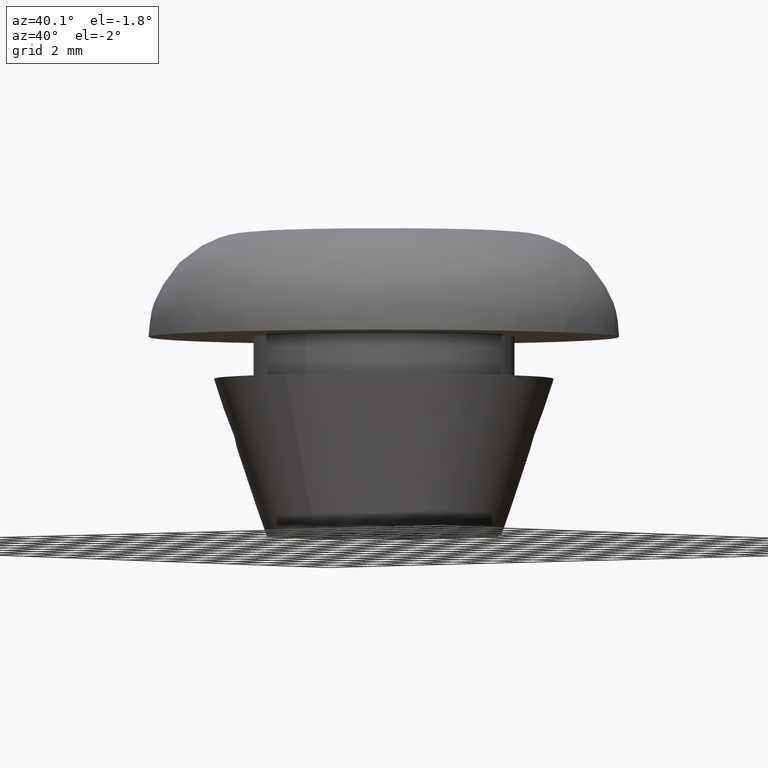
[diagram: clean part render]
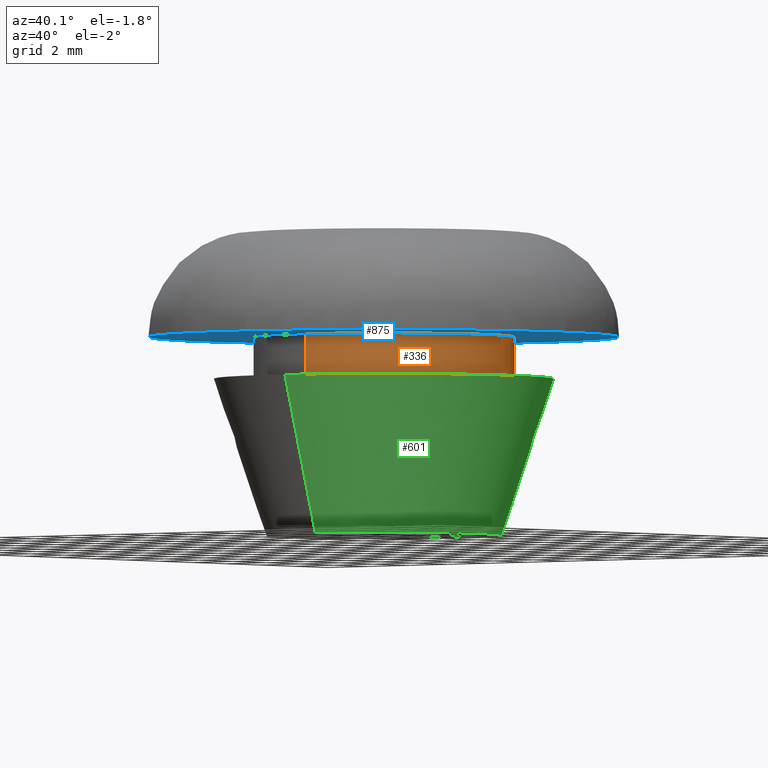
[diagram: same view with three faces highlighted in distinct colors, each labeled with its STEP entity id]
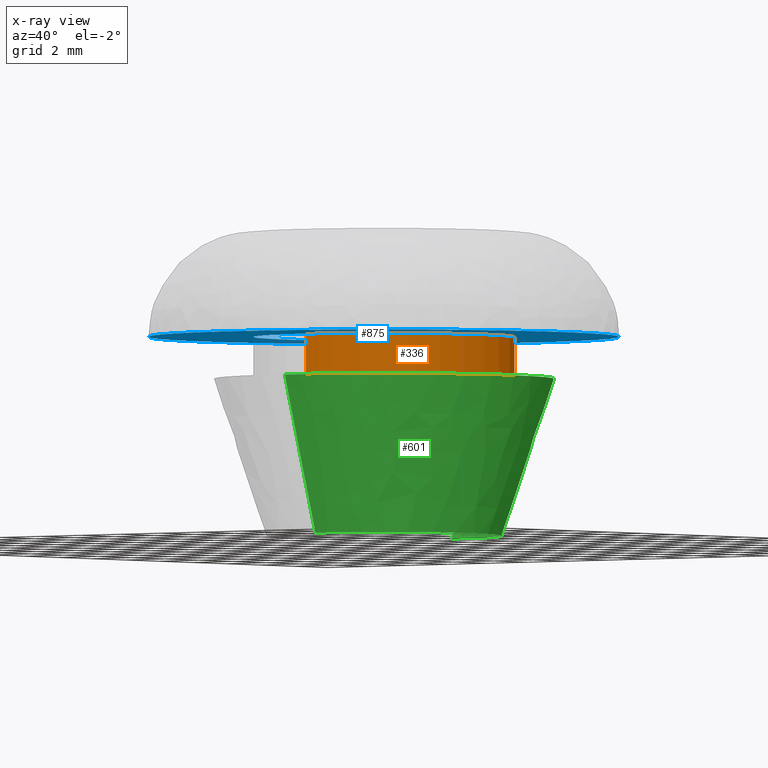
[diagram: x-ray of the same camera — body ghosted, the three highlighted faces saturated]
A machine part, auxiliary view with three faces highlighted in distinct colors.
The next image is the same camera in x-ray (body ghosted, the three faces saturated) — at least one of them is partly hidden behind the body in this view.
Their STEP definitions:

[orange] entity #336 — the highlighted face is a freeform B-spline surface patch.
#234=CARTESIAN_POINT('',(-0.590171173283792,4.965047631818332,7.640000000000002));
#235=CARTESIAN_POINT('',(-0.448073643189888,4.981938077243028,7.640000000000002));
#236=CARTESIAN_POINT('',(-0.305242697674285,4.990673992109334,7.640000000000001));
#237=CARTESIAN_POINT('',(4.685431294435048,5.295916689783620,7.640000000000001));
#238=CARTESIAN_POINT('',(4.990673992109334,0.305242697674285,7.640000000000001));
#239=CARTESIAN_POINT('',(5.295916689783620,-4.685431294435048,7.640000000000001));
#240=CARTESIAN_POINT('',(0.305242697674285,-4.990673992109334,7.640000000000001));
#241=CARTESIAN_POINT('',(-0.590171173283792,4.965047631818332,5.959000000000001));
#242=CARTESIAN_POINT('',(-0.448073643189888,4.981938077243028,5.959000000000000));
#243=CARTESIAN_POINT('',(-0.305242697674285,4.990673992109334,5.958999999999999));
#244=CARTESIAN_POINT('',(4.685431294435048,5.295916689783620,5.958999999999999));
#245=CARTESIAN_POINT('',(4.990673992109334,0.305242697674285,5.958999999999999));
#246=CARTESIAN_POINT('',(5.295916689783620,-4.685431294435048,5.958999999999999));
#247=CARTESIAN_POINT('',(0.305242697674285,-4.990673992109334,5.958999999999999));
#255=(BOUNDED_SURFACE()B_SPLINE_SURFACE(2,1,((#234,#241),(#235,#242),(#236,#243),(#237,#244),(#238,#245),(#239,#246),(#240,#247)),.UNSPECIFIED.,.F.,.F.,.U.)B_SPLINE_SURFACE_WITH_KNOTS((3,2,2,3),(2,2),(0.0,0.331370849898476,8.615642097360375,16.899913344822270),(0.0,1.0),.UNSPECIFIED.)GEOMETRIC_REPRESENTATION_ITEM()RATIONAL_B_SPLINE_SURFACE(((0.977505800795127,0.977505800795127),(0.988284271247462,0.988284271247462),(1.0,1.0),(0.707106781186548,0.707106781186548),(1.0,1.0),(0.707106781186548,0.707106781186548),(1.0,1.0)))REPRESENTATION_ITEM('')SURFACE());
#256=CARTESIAN_POINT('',(-0.590169455614432,4.965047835988770,7.600000000000016));
#257=VERTEX_POINT('',#256);
#258=CARTESIAN_POINT('',(5.0,0.0,7.600000000000000));
#259=VERTEX_POINT('',#258);
#260=CARTESIAN_POINT('',(-0.590169455614432,4.965047835988770,7.600000000000016));
#261=CARTESIAN_POINT('',(-0.296119730345424,4.999999999999999,7.600000000000000));
#262=CARTESIAN_POINT('',(0.0,5.0,7.600000000000000));
#263=CARTESIAN_POINT('',(5.000000000000001,5.000000000000001,7.600000000000000));
#264=CARTESIAN_POINT('',(5.0,0.0,7.600000000000000));
#272=(BOUNDED_CURVE()B_SPLINE_CURVE(2,(#260,#261,#262,#263,#264),.UNSPECIFIED.,.F.,.U.)B_SPLINE_CURVE_WITH_KNOTS((3,2,3),(0.229562531982699,0.250000000000000,0.500000000000000),.UNSPECIFIED.)CURVE()GEOMETRIC_REPRESENTATION_ITEM()RATIONAL_B_SPLINE_CURVE((0.956026868785737,0.976056016832063,1.0,0.707106781186548,1.0))REPRESENTATION_ITEM(''));
#273=EDGE_CURVE('',#257,#259,#272,.T.);
#274=ORIENTED_EDGE('',*,*,#273,.T.);
#275=CARTESIAN_POINT('',(0.305237013104272,-4.990674339786032,7.599999999999929));
#276=VERTEX_POINT('',#275);
#277=CARTESIAN_POINT('',(5.0,0.0,7.600000000000000));
#278=CARTESIAN_POINT('',(4.999999999999999,-4.703535702044791,7.599999999999999));
#279=CARTESIAN_POINT('',(0.305237013104272,-4.990674339786032,7.599999999999930));
#287=(BOUNDED_CURVE()B_SPLINE_CURVE(2,(#277,#278,#279),.UNSPECIFIED.,.F.,.U.)B_SPLINE_CURVE_WITH_KNOTS((3,3),(0.500000000000000,0.739333158779441),.UNSPECIFIED.)CURVE()GEOMETRIC_REPRESENTATION_ITEM()RATIONAL_B_SPLINE_CURVE((1.0,0.719603763025194,0.976072462890779))REPRESENTATION_ITEM(''));
#288=EDGE_CURVE('',#259,#276,#287,.T.);
#289=ORIENTED_EDGE('',*,*,#288,.T.);
#290=CARTESIAN_POINT('',(0.305237081557413,-4.990674335599413,6.0));
#291=VERTEX_POINT('',#290);
#292=CARTESIAN_POINT('',(0.305237013104272,-4.990674339786032,7.599999999999929));
#293=CARTESIAN_POINT('',(0.305237081557413,-4.990674335599413,6.0));
#294=QUASI_UNIFORM_CURVE('',1,(#292,#293),.UNSPECIFIED.,.F.,.U.);
#295=EDGE_CURVE('',#276,#291,#294,.T.);
#296=ORIENTED_EDGE('',*,*,#295,.T.);
#297=CARTESIAN_POINT('',(5.0,0.0,6.0));
#298=VERTEX_POINT('',#297);
#299=CARTESIAN_POINT('',(5.0,0.0,6.0));
#300=CARTESIAN_POINT('',(4.999999999999999,-4.703535637409559,6.0));
#301=CARTESIAN_POINT('',(0.305237081557413,-4.990674335599414,6.000000000000001));
#309=(BOUNDED_CURVE()B_SPLINE_CURVE(2,(#299,#300,#301),.UNSPECIFIED.,.F.,.U.)B_SPLINE_CURVE_WITH_KNOTS((3,3),(0.500000000000000,0.739333156412752),.UNSPECIFIED.)CURVE()GEOMETRIC_REPRESENTATION_ITEM()RATIONAL_B_SPLINE_CURVE((1.0,0.719603765797943,0.976072457818505))REPRESENTATION_ITEM(''));
#310=EDGE_CURVE('',#298,#291,#309,.T.);
#311=ORIENTED_EDGE('',*,*,#310,.F.);
#312=CARTESIAN_POINT('',(-0.590169476332178,4.965047833526166,6.0));
#313=VERTEX_POINT('',#312);
#314=CARTESIAN_POINT('',(-0.590169476332178,4.965047833526166,6.000000000000001));
#315=CARTESIAN_POINT('',(-0.296119740813809,5.0,6.0));
#316=CARTESIAN_POINT('',(0.0,5.0,6.0));
#317=CARTESIAN_POINT('',(5.000000000000001,5.000000000000001,6.0));
#318=CARTESIAN_POINT('',(5.0,0.0,6.0));
#326=(BOUNDED_CURVE()B_SPLINE_CURVE(2,(#314,#315,#316,#317,#318),.UNSPECIFIED.,.F.,.U.)B_SPLINE_CURVE_WITH_KNOTS((3,2,3),(0.229562531277496,0.250000000000000,0.500000000000000),.UNSPECIFIED.)CURVE()GEOMETRIC_REPRESENTATION_ITEM()RATIONAL_B_SPLINE_CURVE((0.956026867403510,0.976056016005866,1.0,0.707106781186548,1.0))REPRESENTATION_ITEM(''));
#327=EDGE_CURVE('',#313,#298,#326,.T.);
#328=ORIENTED_EDGE('',*,*,#327,.F.);
#329=CARTESIAN_POINT('',(-0.590169455614432,4.965047835988770,7.600000000000016));
#330=CARTESIAN_POINT('',(-0.590169476332178,4.965047833526166,6.0));
#331=QUASI_UNIFORM_CURVE('',1,(#329,#330),.UNSPECIFIED.,.F.,.U.);
#332=EDGE_CURVE('',#257,#313,#331,.T.);
#333=ORIENTED_EDGE('',*,*,#332,.F.);
#334=EDGE_LOOP('',(#274,#289,#296,#311,#328,#333));
#335=FACE_OUTER_BOUND('',#334,.T.);
#336=ADVANCED_FACE('',(#335),#255,.T.);

[blue] entity #875 — the highlighted face is a freeform B-spline surface patch.
#256=CARTESIAN_POINT('',(-0.590169455614432,4.965047835988770,7.600000000000016));
#257=VERTEX_POINT('',#256);
#258=CARTESIAN_POINT('',(5.0,0.0,7.600000000000000));
#259=VERTEX_POINT('',#258);
#260=CARTESIAN_POINT('',(-0.590169455614432,4.965047835988770,7.600000000000016));
#261=CARTESIAN_POINT('',(-0.296119730345424,4.999999999999999,7.600000000000000));
#262=CARTESIAN_POINT('',(0.0,5.0,7.600000000000000));
#263=CARTESIAN_POINT('',(5.000000000000001,5.000000000000001,7.600000000000000));
#264=CARTESIAN_POINT('',(5.0,0.0,7.600000000000000));
#272=(BOUNDED_CURVE()B_SPLINE_CURVE(2,(#260,#261,#262,#263,#264),.UNSPECIFIED.,.F.,.U.)B_SPLINE_CURVE_WITH_KNOTS((3,2,3),(0.229562531982699,0.250000000000000,0.500000000000000),.UNSPECIFIED.)CURVE()GEOMETRIC_REPRESENTATION_ITEM()RATIONAL_B_SPLINE_CURVE((0.956026868785737,0.976056016832063,1.0,0.707106781186548,1.0))REPRESENTATION_ITEM(''));
#273=EDGE_CURVE('',#257,#259,#272,.T.);
#275=CARTESIAN_POINT('',(0.305237013104272,-4.990674339786032,7.599999999999929));
#276=VERTEX_POINT('',#275);
#277=CARTESIAN_POINT('',(5.0,0.0,7.600000000000000));
#278=CARTESIAN_POINT('',(4.999999999999999,-4.703535702044791,7.599999999999999));
#279=CARTESIAN_POINT('',(0.305237013104272,-4.990674339786032,7.599999999999930));
#287=(BOUNDED_CURVE()B_SPLINE_CURVE(2,(#277,#278,#279),.UNSPECIFIED.,.F.,.U.)B_SPLINE_CURVE_WITH_KNOTS((3,3),(0.500000000000000,0.739333158779441),.UNSPECIFIED.)CURVE()GEOMETRIC_REPRESENTATION_ITEM()RATIONAL_B_SPLINE_CURVE((1.0,0.719603763025194,0.976072462890779))REPRESENTATION_ITEM(''));
#288=EDGE_CURVE('',#259,#276,#287,.T.);
#355=CARTESIAN_POINT('',(-5.0,0.0,7.600000000000000));
#356=VERTEX_POINT('',#355);
#357=CARTESIAN_POINT('',(-5.0,0.0,7.600000000000000));
#358=CARTESIAN_POINT('',(-5.0,4.440874176902134,7.600000000000000));
#359=CARTESIAN_POINT('',(-0.590169455614432,4.965047835988770,7.600000000000016));
#367=(BOUNDED_CURVE()B_SPLINE_CURVE(2,(#357,#358,#359),.UNSPECIFIED.,.F.,.U.)B_SPLINE_CURVE_WITH_KNOTS((3,3),(0.0,0.229562531982699),.UNSPECIFIED.)CURVE()GEOMETRIC_REPRESENTATION_ITEM()RATIONAL_B_SPLINE_CURVE((1.0,0.731050764354485,0.956026868785737))REPRESENTATION_ITEM(''));
#368=EDGE_CURVE('',#356,#257,#367,.T.);
#402=CARTESIAN_POINT('',(0.305237013104272,-4.990674339786032,7.599999999999930));
#403=CARTESIAN_POINT('',(0.152760966238695,-5.0,7.600000000000001));
#404=CARTESIAN_POINT('',(0.0,-5.0,7.600000000000000));
#405=CARTESIAN_POINT('',(-5.000000000000001,-5.000000000000001,7.600000000000000));
#406=CARTESIAN_POINT('',(-5.0,0.0,7.600000000000000));
#414=(BOUNDED_CURVE()B_SPLINE_CURVE(2,(#402,#403,#404,#405,#406),.UNSPECIFIED.,.F.,.U.)B_SPLINE_CURVE_WITH_KNOTS((3,2,3),(0.739333158779441,0.750000000000000,1.0),.UNSPECIFIED.)CURVE()GEOMETRIC_REPRESENTATION_ITEM()RATIONAL_B_SPLINE_CURVE((0.976072462890779,0.987503018161353,1.0,0.707106781186548,1.0))REPRESENTATION_ITEM(''));
#415=EDGE_CURVE('',#276,#356,#414,.T.);
#673=CARTESIAN_POINT('',(8.999289397834284,0.113094358954944,7.600000000009858));
#674=VERTEX_POINT('',#673);
#688=CARTESIAN_POINT('',(-9.0,0.0,7.600000000000000));
#689=VERTEX_POINT('',#688);
#690=CARTESIAN_POINT('',(-9.0,0.0,7.600000000000000));
#691=CARTESIAN_POINT('',(-9.0,9.0,7.600000000000000));
#692=CARTESIAN_POINT('',(0.0,9.0,7.600000000000000));
#693=CARTESIAN_POINT('',(8.887607369156402,9.0,7.600000000000000));
#694=CARTESIAN_POINT('',(8.999289397834284,0.113094358954944,7.600000000009858));
#702=(BOUNDED_CURVE()B_SPLINE_CURVE(2,(#690,#691,#692,#693,#694),.UNSPECIFIED.,.F.,.U.)B_SPLINE_CURVE_WITH_KNOTS((3,2,3),(0.0,0.250000000000000,0.497784295921542),.UNSPECIFIED.)CURVE()GEOMETRIC_REPRESENTATION_ITEM()RATIONAL_B_SPLINE_CURVE((1.0,0.707106781186547,1.0,0.709702639984458,0.994854295643583))REPRESENTATION_ITEM(''));
#703=EDGE_CURVE('',#689,#674,#702,.T.);
#705=CARTESIAN_POINT('',(0.627599264179879,-8.978091064563827,7.600000000009816));
#706=VERTEX_POINT('',#705);
#707=CARTESIAN_POINT('',(0.627599264179879,-8.978091064563827,7.600000000009816));
#708=CARTESIAN_POINT('',(0.314182042873311,-9.000000000000002,7.600000000000000));
#709=CARTESIAN_POINT('',(0.0,-9.0,7.600000000000000));
#710=CARTESIAN_POINT('',(-9.0,-9.0,7.600000000000000));
#711=CARTESIAN_POINT('',(-9.0,0.0,7.600000000000000));
#719=(BOUNDED_CURVE()B_SPLINE_CURVE(2,(#707,#708,#709,#710,#711),.UNSPECIFIED.,.F.,.U.)B_SPLINE_CURVE_WITH_KNOTS((3,2,3),(0.737833686535100,0.750000000000000,1.0),.UNSPECIFIED.)CURVE()GEOMETRIC_REPRESENTATION_ITEM()RATIONAL_B_SPLINE_CURVE((0.972879876386993,0.985746277152688,1.0,0.707106781186547,1.0))REPRESENTATION_ITEM(''));
#720=EDGE_CURVE('',#706,#689,#719,.T.);
#771=CARTESIAN_POINT('',(9.0,0.0,7.600000000000000));
#772=VERTEX_POINT('',#771);
#773=CARTESIAN_POINT('',(9.0,0.0,7.600000000000000));
#774=CARTESIAN_POINT('',(9.000000000000002,-8.392831625397912,7.600000000000000));
#775=CARTESIAN_POINT('',(0.627599264179879,-8.978091064563827,7.600000000009816));
#783=(BOUNDED_CURVE()B_SPLINE_CURVE(2,(#773,#774,#775),.UNSPECIFIED.,.F.,.U.)B_SPLINE_CURVE_WITH_KNOTS((3,3),(0.500000000000000,0.737833686535101),.UNSPECIFIED.)CURVE()GEOMETRIC_REPRESENTATION_ITEM()RATIONAL_B_SPLINE_CURVE((1.0,0.721360504033859,0.972879876386995))REPRESENTATION_ITEM(''));
#784=EDGE_CURVE('',#772,#706,#783,.T.);
#786=CARTESIAN_POINT('',(8.999289397834284,0.113094358954944,7.600000000009858));
#787=CARTESIAN_POINT('',(9.0,0.056549411931782,7.600000000000000));
#788=CARTESIAN_POINT('',(9.0,0.0,7.600000000000000));
#796=(BOUNDED_CURVE()B_SPLINE_CURVE(2,(#786,#787,#788),.UNSPECIFIED.,.F.,.U.)B_SPLINE_CURVE_WITH_KNOTS((3,3),(0.497784295921542,0.500000000000000),.UNSPECIFIED.)CURVE()GEOMETRIC_REPRESENTATION_ITEM()RATIONAL_B_SPLINE_CURVE((0.994854295643583,0.997404141202089,1.0))REPRESENTATION_ITEM(''));
#797=EDGE_CURVE('',#674,#772,#796,.T.);
#858=CARTESIAN_POINT('',(9.899099965112507,-9.898013720965656,7.600000000000000));
#859=CARTESIAN_POINT('',(-9.899100447910129,-9.898013720965656,7.600000000000000));
#860=CARTESIAN_POINT('',(9.899099965112507,9.898862726337711,7.600000000000000));
#861=CARTESIAN_POINT('',(-9.899100447910129,9.898862726337711,7.600000000000000));
#862=B_SPLINE_SURFACE_WITH_KNOTS('',1,1,((#858,#860),(#859,#861)),.UNSPECIFIED.,.F.,.F.,.U.,(2,2),(2,2),(0.0,19.798200413022631),(0.0,19.796876447303369),.UNSPECIFIED.);
#863=ORIENTED_EDGE('',*,*,#703,.T.);
#864=ORIENTED_EDGE('',*,*,#797,.T.);
#865=ORIENTED_EDGE('',*,*,#784,.T.);
#866=ORIENTED_EDGE('',*,*,#720,.T.);
#867=EDGE_LOOP('',(#863,#864,#865,#866));
#868=FACE_OUTER_BOUND('',#867,.T.);
#869=ORIENTED_EDGE('',*,*,#288,.F.);
#870=ORIENTED_EDGE('',*,*,#273,.F.);
#871=ORIENTED_EDGE('',*,*,#368,.F.);
#872=ORIENTED_EDGE('',*,*,#415,.F.);
#873=EDGE_LOOP('',(#869,#870,#871,#872));
#874=FACE_BOUND('',#873,.T.);
#875=ADVANCED_FACE('',(#868,#874),#862,.T.);

[green] entity #601 — the highlighted face is a freeform B-spline surface patch.
#440=CARTESIAN_POINT('',(-0.353063810381927,4.486127613227898,-0.000001661209573));
#441=VERTEX_POINT('',#440);
#455=CARTESIAN_POINT('',(0.353063810381927,-4.486127613227898,-0.000001661209573));
#456=VERTEX_POINT('',#455);
#472=CARTESIAN_POINT('',(0.509980382880330,-6.479961963647005,5.999997009518591));
#473=VERTEX_POINT('',#472);
#474=CARTESIAN_POINT('',(0.353063810381927,-4.486127613227898,-0.000001661209573));
#475=CARTESIAN_POINT('',(0.509980382880330,-6.479961963647005,5.999997009518591));
#476=QUASI_UNIFORM_CURVE('',1,(#474,#475),.UNSPECIFIED.,.F.,.U.);
#477=EDGE_CURVE('',#456,#473,#476,.T.);
#496=CARTESIAN_POINT('',(-0.509980382880330,6.479961963647005,5.999997009518590));
#497=VERTEX_POINT('',#496);
#511=CARTESIAN_POINT('',(-0.353063810381927,4.486127613227898,-0.000001661209573));
#512=CARTESIAN_POINT('',(-0.509980382880330,6.479961963647005,5.999997009518590));
#513=QUASI_UNIFORM_CURVE('',1,(#511,#512),.UNSPECIFIED.,.F.,.U.);
#514=EDGE_CURVE('',#441,#497,#513,.T.);
#519=CARTESIAN_POINT('',(0.349142975988913,-4.436282135112418,-0.150000000000000));
#520=CARTESIAN_POINT('',(4.785425111101330,-4.087139159123505,-0.150000000000000));
#521=CARTESIAN_POINT('',(4.436282135112418,0.349142975988913,-0.150000000000000));
#522=CARTESIAN_POINT('',(4.087139159123505,4.785425111101330,-0.150000000000000));
#523=CARTESIAN_POINT('',(-0.349142975988913,4.436282135112418,-0.150000000000000));
#524=CARTESIAN_POINT('',(0.514005150887048,-6.531054682619153,6.153750000000001));
#525=CARTESIAN_POINT('',(7.045059833506200,-6.017049531732106,6.153750000000003));
#526=CARTESIAN_POINT('',(6.531054682619153,0.514005150887048,6.153750000000001));
#527=CARTESIAN_POINT('',(6.017049531732106,7.045059833506200,6.153750000000003));
#528=CARTESIAN_POINT('',(-0.514005150887048,6.531054682619153,6.153750000000001));
#536=(BOUNDED_SURFACE()B_SPLINE_SURFACE(2,1,((#519,#524),(#520,#525),(#521,#526),(#522,#527),(#523,#528)),.UNSPECIFIED.,.F.,.F.,.U.)B_SPLINE_SURFACE_WITH_KNOTS((3,2,3),(2,2),(0.0,10.854466401986951,21.708932803973909),(0.0,6.644735933428809),.UNSPECIFIED.)GEOMETRIC_REPRESENTATION_ITEM()RATIONAL_B_SPLINE_SURFACE(((1.0,1.0),(0.707106781186548,0.707106781186548),(1.0,1.0),(0.707106781186548,0.707106781186548),(1.0,1.0)))REPRESENTATION_ITEM('')SURFACE());
#537=CARTESIAN_POINT('',(4.500000000000000,0.0,0.0));
#538=VERTEX_POINT('',#537);
#539=CARTESIAN_POINT('',(-0.353063810381927,4.486127613227898,-0.000001661209573));
#540=CARTESIAN_POINT('',(-0.176804395584851,4.499999457994604,-0.000001631042669));
#541=CARTESIAN_POINT('',(0.000000041803015,4.499999468839200,-0.000001598408310));
#542=CARTESIAN_POINT('',(4.500000020080290,4.499999744854221,-0.000000767803524));
#543=CARTESIAN_POINT('',(4.500000000000000,0.0,0.0));
#551=(BOUNDED_CURVE()B_SPLINE_CURVE(2,(#539,#540,#541,#542,#543),.UNSPECIFIED.,.F.,.U.)B_SPLINE_CURVE_WITH_KNOTS((3,2,3),(0.236331379997369,0.250000000000000,0.500000000000000),.UNSPECIFIED.)CURVE()GEOMETRIC_REPRESENTATION_ITEM()RATIONAL_B_SPLINE_CURVE((0.969723521799744,0.983986215562766,1.0,0.707106781186547,1.0))REPRESENTATION_ITEM(''));
#552=EDGE_CURVE('',#441,#538,#551,.T.);
#553=ORIENTED_EDGE('',*,*,#552,.F.);
#554=ORIENTED_EDGE('',*,*,#514,.T.);
#555=CARTESIAN_POINT('',(6.500000000000000,0.0,6.0));
#556=VERTEX_POINT('',#555);
#557=CARTESIAN_POINT('',(-0.509980382880331,6.479961963647006,5.999997009518590));
#558=CARTESIAN_POINT('',(-0.255383779694900,6.499999024290850,5.999997063824477));
#559=CARTESIAN_POINT('',(0.000000075252999,6.499999043813086,5.999997122572222));
#560=CARTESIAN_POINT('',(6.500000036148161,6.499999540690751,5.999998617812927));
#561=CARTESIAN_POINT('',(6.500000000000000,0.0,6.0));
#569=(BOUNDED_CURVE()B_SPLINE_CURVE(2,(#557,#558,#559,#560,#561),.UNSPECIFIED.,.F.,.U.)B_SPLINE_CURVE_WITH_KNOTS((3,2,3),(0.236331397486609,0.250000000000000,0.500000000000000),.UNSPECIFIED.)CURVE()GEOMETRIC_REPRESENTATION_ITEM()RATIONAL_B_SPLINE_CURVE((0.969723558298482,0.983986236052685,1.0,0.707106781186547,1.0))REPRESENTATION_ITEM(''));
#570=EDGE_CURVE('',#497,#556,#569,.T.);
#571=ORIENTED_EDGE('',*,*,#570,.T.);
#572=CARTESIAN_POINT('',(6.500000000000000,0.0,6.0));
#573=CARTESIAN_POINT('',(6.499999960895162,-6.008541104187774,5.999998504759294));
#574=CARTESIAN_POINT('',(0.509980382880330,-6.479961963647006,5.999997009518592));
#582=(BOUNDED_CURVE()B_SPLINE_CURVE(2,(#572,#573,#574),.UNSPECIFIED.,.F.,.U.)B_SPLINE_CURVE_WITH_KNOTS((3,3),(0.500000000000000,0.736331397486609),.UNSPECIFIED.)CURVE()GEOMETRIC_REPRESENTATION_ITEM()RATIONAL_B_SPLINE_CURVE((1.0,0.723120545133863,0.969723558298482))REPRESENTATION_ITEM(''));
#583=EDGE_CURVE('',#556,#473,#582,.T.);
#584=ORIENTED_EDGE('',*,*,#583,.T.);
#585=ORIENTED_EDGE('',*,*,#477,.F.);
#586=CARTESIAN_POINT('',(4.500000000000000,0.0,0.0));
#587=CARTESIAN_POINT('',(4.499999978277277,-4.159758868250052,-0.000000830604787));
#588=CARTESIAN_POINT('',(0.353063810381927,-4.486127613227898,-0.000001661209573));
#596=(BOUNDED_CURVE()B_SPLINE_CURVE(2,(#586,#587,#588),.UNSPECIFIED.,.F.,.U.)B_SPLINE_CURVE_WITH_KNOTS((3,3),(0.500000000000000,0.736331379997369),.UNSPECIFIED.)CURVE()GEOMETRIC_REPRESENTATION_ITEM()RATIONAL_B_SPLINE_CURVE((1.0,0.723120565623782,0.969723521799744))REPRESENTATION_ITEM(''));
#597=EDGE_CURVE('',#538,#456,#596,.T.);
#598=ORIENTED_EDGE('',*,*,#597,.F.);
#599=EDGE_LOOP('',(#553,#554,#571,#584,#585,#598));
#600=FACE_OUTER_BOUND('',#599,.T.);
#601=ADVANCED_FACE('',(#600),#536,.T.);